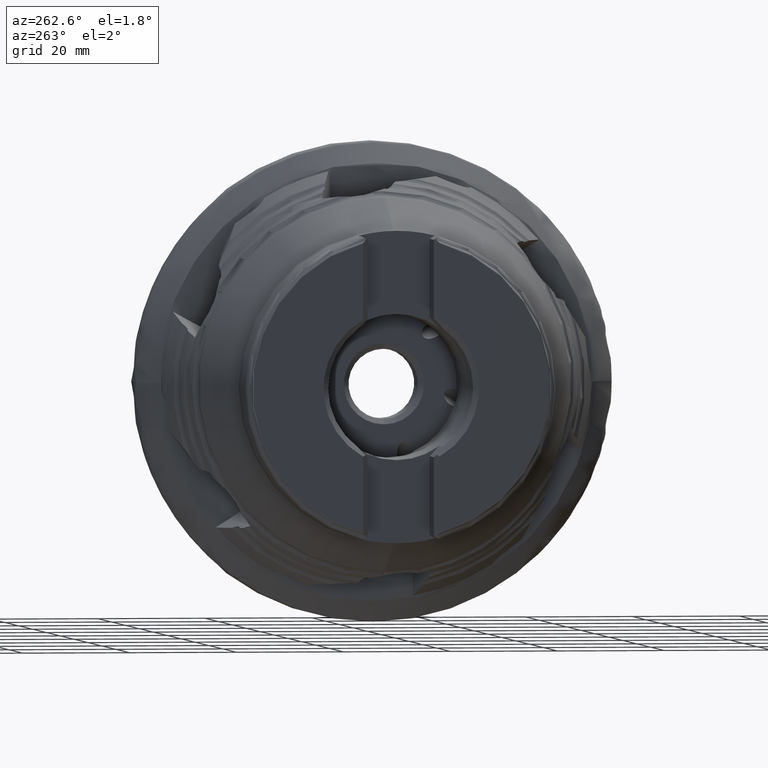
[diagram: clean part render]
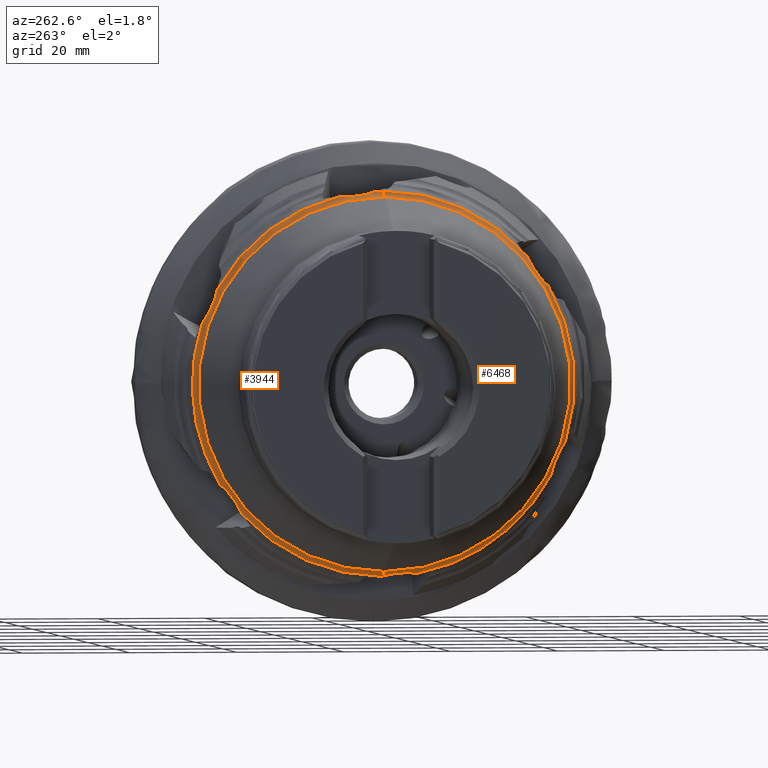
[diagram: same view with one multi-face feature highlighted, each face labeled with its STEP entity id]
A machine part, auxiliary view. The highlighted faces form ONE feature: a constant-radius fillet chain: 2 tangent blend faces with common blend radius 1.5 mm. The faces share edges in the B-rep.
Their STEP definitions:
[1] entity #3944 (Torus):
#110 = EDGE_CURVE ( 'NONE', #8432, #2857, #7412, .T. ) ;
#207 = ORIENTED_EDGE ( 'NONE', *, *, #3292, .T. ) ;
#227 = CARTESIAN_POINT ( 'NONE',  ( -23.26846922673073000, 33.07769343944865200, 12.62032171357736700 ) ) ;
#229 = CARTESIAN_POINT ( 'NONE',  ( -23.13291460388395400, 0.09912091284116551800, -35.66164226546533200 ) ) ;
#280 = ORIENTED_EDGE ( 'NONE', *, *, #873, .F. ) ;
#581 = DIRECTION ( 'NONE',  ( 0.0000000000000000000, 0.0000000000000000000, -1.000000000000000000 ) ) ;
#662 = CARTESIAN_POINT ( 'NONE',  ( -24.52349797747156000, 0.0000000000000000000, -36.22528040789519800 ) ) ;
#671 = CIRCLE ( 'NONE', #9374, 35.74048612992343300 ) ;
#740 = CARTESIAN_POINT ( 'NONE',  ( -23.38823427744470600, 27.83872261549176800, -21.62232990215361600 ) ) ;
#775 = CARTESIAN_POINT ( 'NONE',  ( -23.26846922673071600, 27.07436607613778500, -22.81194917151126900 ) ) ;
#805 = CARTESIAN_POINT ( 'NONE',  ( -23.26179094232400500, 29.60827765928307900, -19.42470319220430500 ) ) ;
#873 = EDGE_CURVE ( 'NONE', #1262, #6074, #6096, .T. ) ;
#960 = EDGE_CURVE ( 'NONE', #2857, #10159, #9450, .T. ) ;
#1061 = CARTESIAN_POINT ( 'NONE',  ( -23.38823427744470600, 32.40779638605266700, 13.86558187239222700 ) ) ;
#1262 = VERTEX_POINT ( 'NONE', #7459 ) ;
#1452 = CARTESIAN_POINT ( 'NONE',  ( -24.52349797747156000, 0.0000000000000000000, 0.0000000000000000000 ) ) ;
#1454 = ORIENTED_EDGE ( 'NONE', *, *, #4030, .F. ) ;
#1481 = CARTESIAN_POINT ( 'NONE',  ( -23.40237160754822900, 28.50734537346001900, -20.70540525347352900 ) ) ;
#1597 = ORIENTED_EDGE ( 'NONE', *, *, #7899, .F. ) ;
#1717 = CARTESIAN_POINT ( 'NONE',  ( -23.23695502368799000, 7.107204732017213400, 34.73226298735313100 ) ) ;
#1750 = CARTESIAN_POINT ( 'NONE',  ( -23.10400000000001300, 8.233862509804312800, 34.77910086492876500 ) ) ;
#1786 = CARTESIAN_POINT ( 'NONE',  ( -23.13595162644875500, 7.951616487152876700, 34.74978005706662300 ) ) ;
#1802 = CARTESIAN_POINT ( 'NONE',  ( -23.10400000000001000, 0.0000000000000000000, 0.0000000000000000000 ) ) ;
#1836 = CARTESIAN_POINT ( 'NONE',  ( -23.14192288257311200, 31.14701512158321600, 17.30285532417699200 ) ) ;
#2253 = DIRECTION ( 'NONE',  ( 0.0000000000000000000, 0.0000000000000000000, -1.000000000000000000 ) ) ;
#2405 = CARTESIAN_POINT ( 'NONE',  ( -23.13595162644875500, 26.53782228718883500, -23.80166815638874700 ) ) ;
#2482 = AXIS2_PLACEMENT_3D ( 'NONE', #1802, #3370, #3404 ) ;
#2571 = CARTESIAN_POINT ( 'NONE',  ( -23.38823427744469900, 5.414835307333183900, 34.83100896980042200 ) ) ;
#2857 = VERTEX_POINT ( 'NONE', #3025 ) ;
#2887 = DIRECTION ( 'NONE',  ( 1.000000000000000000, -0.0000000000000000000, -0.0000000000000000000 ) ) ;
#2933 = CARTESIAN_POINT ( 'NONE',  ( -23.14788680083583500, -3.415367212235292800E-015, -35.62720525315721400 ) ) ;
#2946 = VERTEX_POINT ( 'NONE', #10301 ) ;
#2954 = DIRECTION ( 'NONE',  ( 0.0000000000000000000, 0.0000000000000000000, -1.000000000000000000 ) ) ;
#2961 = AXIS2_PLACEMENT_3D ( 'NONE', #6237, #8648, #9448 ) ;
#3025 = CARTESIAN_POINT ( 'NONE',  ( -23.10400000000004900, 31.11547545473005600, 17.58435486531532300 ) ) ;
#3062 = DIRECTION ( 'NONE',  ( 1.000000000000000000, -0.0000000000000000000, -0.0000000000000000000 ) ) ;
#3118 = DIRECTION ( 'NONE',  ( 0.0000000000000000000, 0.0000000000000000000, -1.000000000000000000 ) ) ;
#3122 = CARTESIAN_POINT ( 'NONE',  ( -23.37804757797597700, 28.85448777893662300, -20.26012901961817300 ) ) ;
#3149 = DIRECTION ( 'NONE',  ( 1.000000000000000000, -0.0000000000000000000, -0.0000000000000000000 ) ) ;
#3229 = CARTESIAN_POINT ( 'NONE',  ( -23.18460891632897600, 30.01846003366986100, -19.03637835003804900 ) ) ;
#3292 = EDGE_CURVE ( 'NONE', #2946, #6565, #9000, .T. ) ;
#3353 = CARTESIAN_POINT ( 'NONE',  ( -23.26179094232401200, 2.634850369090146100, 35.31326611327448700 ) ) ;
#3370 = DIRECTION ( 'NONE',  ( 1.000000000000000000, -0.0000000000000000000, -0.0000000000000000000 ) ) ;
#3404 = DIRECTION ( 'NONE',  ( 0.0000000000000000000, 0.0000000000000000000, -1.000000000000000000 ) ) ;
#3426 = CIRCLE ( 'NONE', #4770, 35.74048612992343300 ) ;
#3441 = CARTESIAN_POINT ( 'NONE',  ( -23.13595162644876200, 33.68319957758659200, 11.67122465681031700 ) ) ;
#3470 = ORIENTED_EDGE ( 'NONE', *, *, #4449, .F. ) ;
#3944 = ADVANCED_FACE ( 'NONE', ( #8224 ), #9618, .F. ) ;
#3962 = CARTESIAN_POINT ( 'NONE',  ( -23.35050656518268800, 27.51899163972053900, -22.09263894443169500 ) ) ;
#4030 = EDGE_CURVE ( 'NONE', #6951, #4635, #671, .T. ) ;
#4187 = VERTEX_POINT ( 'NONE', #8857 ) ;
#4195 = CARTESIAN_POINT ( 'NONE',  ( -23.40237160754823300, 4.288720194257072300, 34.97126571984026800 ) ) ;
#4207 = EDGE_LOOP ( 'NONE', ( #5543, #207, #6656, #1454, #6801, #9696, #6307, #3470, #280, #7071, #1597 ) ) ;
#4210 = CARTESIAN_POINT ( 'NONE',  ( -23.17078203873097700, 33.52378406871660100, 11.90357830203017100 ) ) ;
#4449 = EDGE_CURVE ( 'NONE', #6074, #8432, #3426, .T. ) ;
#4492 = DIRECTION ( 'NONE',  ( 0.0000000000000000000, 0.0000000000000000000, -1.000000000000000000 ) ) ;
#4562 = CARTESIAN_POINT ( 'NONE',  ( -23.10400000000001000, 0.0000000000000000000, 0.0000000000000000000 ) ) ;
#4570 = CARTESIAN_POINT ( 'NONE',  ( -23.10400000000005200, 1.576311193567172300, 35.70570811262930300 ) ) ;
#4580 = CARTESIAN_POINT ( 'NONE',  ( -24.52349797747156000, 4.252620350102314500E-015, 34.72528040789519800 ) ) ;
#4601 = CARTESIAN_POINT ( 'NONE',  ( -23.10400000000005200, 30.46470514152916600, -18.68914362518876300 ) ) ;
#4616 = CIRCLE ( 'NONE', #8369, 35.74048612992343300 ) ;
#4635 = VERTEX_POINT ( 'NONE', #5831 ) ;
#4770 = AXIS2_PLACEMENT_3D ( 'NONE', #9405, #3149, #3118 ) ;
#4812 = CARTESIAN_POINT ( 'NONE',  ( -23.29633017139913100, 29.41467465534910300, -19.62881302190041000 ) ) ;
#4972 = CARTESIAN_POINT ( 'NONE',  ( -23.14788680083583500, -3.415367212235292800E-015, -35.62720525315721400 ) ) ;
#5021 = CIRCLE ( 'NONE', #2961, 1.499999999999994400 ) ;
#5036 = CARTESIAN_POINT ( 'NONE',  ( -23.29633017139915200, 31.42826394603787700, 16.21041674562821200 ) ) ;
#5356 = AXIS2_PLACEMENT_3D ( 'NONE', #662, #10147, #2253 ) ;
#5543 = ORIENTED_EDGE ( 'NONE', *, *, #5692, .T. ) ;
#5685 = CARTESIAN_POINT ( 'NONE',  ( -23.35050656518269800, 5.981185517100080100, 34.77937630559328100 ) ) ;
#5692 = EDGE_CURVE ( 'NONE', #8806, #2946, #10105, .T. ) ;
#5788 = CARTESIAN_POINT ( 'NONE',  ( -23.14192288257310500, 1.831749820551429800, 35.58328323733552200 ) ) ;
#5807 = CARTESIAN_POINT ( 'NONE',  ( -23.10400000000001000, 33.85763263752804200, 11.44740411558206900 ) ) ;
#5831 = CARTESIAN_POINT ( 'NONE',  ( -23.10400000000001000, 4.376947193898110400E-015, 35.74048612992343300 ) ) ;
#5840 = CARTESIAN_POINT ( 'NONE',  ( -23.23695502368799700, 33.22087420397446800, 12.37804380543112300 ) ) ;
#5875 = CARTESIAN_POINT ( 'NONE',  ( -23.18460891632898700, 31.20282986680832200, 17.02571736467650300 ) ) ;
#6074 = VERTEX_POINT ( 'NONE', #4601 ) ;
#6096 = B_SPLINE_CURVE_WITH_KNOTS ( 'NONE', 3,
 ( #8642, #2405, #7879, #8706, #775, #3962, #740, #1481, #3122, #4812, #805, #3229, #8671, #9511 ),
 .UNSPECIFIED., .F., .F.,
 ( 4, 2, 2, 2, 2, 2, 4 ),
 ( 0.0000000000000000000, 0.0008494093189409970600, 0.001698818637881994100, 0.003397637275763997400, 0.005096455913645999700, 0.005945865232587005900, 0.006795274551528011200 ),
 .UNSPECIFIED. ) ;
#6237 = CARTESIAN_POINT ( 'NONE',  ( -24.52349797747156000, 4.436317369974417200E-015, 36.22528040789519800 ) ) ;
#6307 = ORIENTED_EDGE ( 'NONE', *, *, #110, .F. ) ;
#6334 = CARTESIAN_POINT ( 'NONE',  ( -23.10400000000001300, 8.233862509804312800, 34.77910086492876500 ) ) ;
#6441 = B_SPLINE_CURVE_WITH_KNOTS ( 'NONE', 3,
 ( #4972, #229, #9693, #7395 ),
 .UNSPECIFIED., .F., .F.,
 ( 4, 4 ),
 ( 0.006479541818658981900, 0.006795274551528320900 ),
 .UNSPECIFIED. ) ;
#6565 = VERTEX_POINT ( 'NONE', #4580 ) ;
#6579 = CARTESIAN_POINT ( 'NONE',  ( -23.26179094232400500, 31.34360606538053800, 16.47870015725375100 ) ) ;
#6596 = EDGE_CURVE ( 'NONE', #4635, #6565, #5021, .T. ) ;
#6656 = ORIENTED_EDGE ( 'NONE', *, *, #6596, .F. ) ;
#6666 = CARTESIAN_POINT ( 'NONE',  ( -23.35050656518270200, 32.66412928993029400, 13.35792851181456900 ) ) ;
#6801 = ORIENTED_EDGE ( 'NONE', *, *, #9409, .F. ) ;
#6951 = VERTEX_POINT ( 'NONE', #4570 ) ;
#6999 = DIRECTION ( 'NONE',  ( 0.0000000000000000000, 0.0000000000000000000, -1.000000000000000000 ) ) ;
#7071 = ORIENTED_EDGE ( 'NONE', *, *, #7408, .F. ) ;
#7234 = CARTESIAN_POINT ( 'NONE',  ( -23.18460891632899400, 2.096353448201546700, 35.48375608217153900 ) ) ;
#7275 = CARTESIAN_POINT ( 'NONE',  ( -23.29633017139914100, 2.907229447379019200, 35.24289151969597400 ) ) ;
#7309 = CARTESIAN_POINT ( 'NONE',  ( -23.26846922673071600, 6.825867167883159500, 34.73922654341556900 ) ) ;
#7344 = CARTESIAN_POINT ( 'NONE',  ( -23.17078203873097300, 7.670092071521425600, 34.73771671098843000 ) ) ;
#7395 = CARTESIAN_POINT ( 'NONE',  ( -23.10400000000000600, 0.2945414635460567600, -35.73927243424944300 ) ) ;
#7408 = EDGE_CURVE ( 'NONE', #4187, #1262, #4616, .T. ) ;
#7412 = B_SPLINE_CURVE_WITH_KNOTS ( 'NONE', 3,
 ( #5807, #3441, #4210, #5840, #227, #6666, #1061, #9760, #9822, #5036, #6579, #5875, #1836, #8135 ),
 .UNSPECIFIED., .F., .F.,
 ( 4, 2, 2, 2, 2, 2, 4 ),
 ( 0.0000000000000000000, 0.0008494093189410055200, 0.001698818637882011000, 0.003397637275764017300, 0.005096455913646024000, 0.005945865232587018900, 0.006795274551528013800 ),
 .UNSPECIFIED. ) ;
#7459 = CARTESIAN_POINT ( 'NONE',  ( -23.10400000000001300, 26.42663125651662500, -24.06274109978637200 ) ) ;
#7879 = CARTESIAN_POINT ( 'NONE',  ( -23.17078203873099100, 26.66375719200716400, -23.54959292820551700 ) ) ;
#7899 = EDGE_CURVE ( 'NONE', #8806, #4187, #6441, .T. ) ;
#8135 = CARTESIAN_POINT ( 'NONE',  ( -23.10400000000004900, 31.11547545473005600, 17.58435486531532300 ) ) ;
#8224 = FACE_OUTER_BOUND ( 'NONE', #4207, .T. ) ;
#8301 = AXIS2_PLACEMENT_3D ( 'NONE', #9177, #2887, #4492 ) ;
#8369 = AXIS2_PLACEMENT_3D ( 'NONE', #4562, #9294, #6999 ) ;
#8432 = VERTEX_POINT ( 'NONE', #8805 ) ;
#8642 = CARTESIAN_POINT ( 'NONE',  ( -23.10400000000001300, 26.42663125651662500, -24.06274109978637200 ) ) ;
#8648 = DIRECTION ( 'NONE',  ( 0.0000000000000000000, 1.000000000000000000, -1.224646799147353200E-016 ) ) ;
#8671 = CARTESIAN_POINT ( 'NONE',  ( -23.14192288257310500, 30.23379082920864700, -18.85320252501394100 ) ) ;
#8706 = CARTESIAN_POINT ( 'NONE',  ( -23.23695502368801200, 26.93188045514494200, -23.05463655049130600 ) ) ;
#8805 = CARTESIAN_POINT ( 'NONE',  ( -23.10400000000001000, 33.85763263752804200, 11.44740411558206900 ) ) ;
#8806 = VERTEX_POINT ( 'NONE', #2933 ) ;
#8857 = CARTESIAN_POINT ( 'NONE',  ( -23.10400000000000600, 0.2945414635460567600, -35.73927243424944300 ) ) ;
#8858 = AXIS2_PLACEMENT_3D ( 'NONE', #1452, #9279, #2954 ) ;
#8904 = CARTESIAN_POINT ( 'NONE',  ( -23.37804757797599100, 3.730974847235854600, 35.05900910701375800 ) ) ;
#9000 = CIRCLE ( 'NONE', #8858, 34.72528040789519800 ) ;
#9177 = CARTESIAN_POINT ( 'NONE',  ( -24.52349797747156000, 0.0000000000000000000, 0.0000000000000000000 ) ) ;
#9279 = DIRECTION ( 'NONE',  ( 1.000000000000000000, -0.0000000000000000000, -0.0000000000000000000 ) ) ;
#9294 = DIRECTION ( 'NONE',  ( 1.000000000000000000, -0.0000000000000000000, -0.0000000000000000000 ) ) ;
#9374 = AXIS2_PLACEMENT_3D ( 'NONE', #10168, #3062, #581 ) ;
#9405 = CARTESIAN_POINT ( 'NONE',  ( -23.10400000000001000, 0.0000000000000000000, 0.0000000000000000000 ) ) ;
#9409 = EDGE_CURVE ( 'NONE', #10159, #6951, #10160, .T. ) ;
#9448 = DIRECTION ( 'NONE',  ( 0.0000000000000000000, 1.224646799147354900E-016, 1.000000000000000000 ) ) ;
#9450 = CIRCLE ( 'NONE', #2482, 35.74048612992343300 ) ;
#9511 = CARTESIAN_POINT ( 'NONE',  ( -23.10400000000005200, 30.46470514152916600, -18.68914362518876300 ) ) ;
#9618 = TOROIDAL_SURFACE ( 'NONE', #8301, 36.22528040789519800, 1.499999999999994400 ) ;
#9669 = CARTESIAN_POINT ( 'NONE',  ( -23.10400000000005200, 1.576311193567172300, 35.70570811262930300 ) ) ;
#9693 = CARTESIAN_POINT ( 'NONE',  ( -23.11809626087926300, 0.1973412380995531200, -35.69879765500817800 ) ) ;
#9696 = ORIENTED_EDGE ( 'NONE', *, *, #960, .F. ) ;
#9760 = CARTESIAN_POINT ( 'NONE',  ( -23.40237160754823600, 31.92999076373385800, 14.89490640387425200 ) ) ;
#9822 = CARTESIAN_POINT ( 'NONE',  ( -23.37804757797599500, 31.70884137225368000, 15.41439819472801700 ) ) ;
#10105 = CIRCLE ( 'NONE', #5356, 1.499999999999994400 ) ;
#10147 = DIRECTION ( 'NONE',  ( -0.0000000000000000000, -1.000000000000000000, -0.0000000000000000000 ) ) ;
#10159 = VERTEX_POINT ( 'NONE', #6334 ) ;
#10160 = B_SPLINE_CURVE_WITH_KNOTS ( 'NONE', 3,
 ( #1750, #1786, #7344, #1717, #7309, #5685, #2571, #4195, #8904, #7275, #3353, #7234, #5788, #9669 ),
 .UNSPECIFIED., .F., .F.,
 ( 4, 2, 2, 2, 2, 2, 4 ),
 ( 0.0000000000000000000, 0.0008494093189409995600, 0.001698818637881999100, 0.003397637275763998200, 0.005096455913645997100, 0.005945865232586999800, 0.006795274551528002500 ),
 .UNSPECIFIED. ) ;
#10168 = CARTESIAN_POINT ( 'NONE',  ( -23.10400000000001000, 0.0000000000000000000, 0.0000000000000000000 ) ) ;
#10301 = CARTESIAN_POINT ( 'NONE',  ( -24.52349797747156000, 0.0000000000000000000, -34.72528040789519800 ) ) ;
[2] entity #6468 (Torus):
#12 = CARTESIAN_POINT ( 'NONE',  ( -23.14192288257310900, -31.44424774395917400, -16.75662964829302100 ) ) ;
#85 = AXIS2_PLACEMENT_3D ( 'NONE', #2673, #5921, #4218 ) ;
#122 = CIRCLE ( 'NONE', #85, 35.74048612992343300 ) ;
#288 = CARTESIAN_POINT ( 'NONE',  ( -23.40237160754820800, -32.18507963188972800, -14.33538266113668400 ) ) ;
#421 = B_SPLINE_CURVE_WITH_KNOTS ( 'NONE', 3,
 ( #2465, #4019, #1608, #2356, #9817, #7936, #7198, #288, #916, #4090, #5690, #5868, #12, #1086 ),
 .UNSPECIFIED., .F., .F.,
 ( 4, 2, 2, 2, 2, 2, 4 ),
 ( 0.0000000000000000000, 0.0008494093189410023800, 0.001698818637882004800, 0.003397637275764019500, 0.005096455913646034400, 0.005945865232587041500, 0.006795274551528049400 ),
 .UNSPECIFIED. ) ;
#469 = CARTESIAN_POINT ( 'NONE',  ( -23.37804757797598800, -29.20368110681039300, 19.75346305557852500 ) ) ;
#655 = ORIENTED_EDGE ( 'NONE', *, *, #9465, .T. ) ;
#662 = CARTESIAN_POINT ( 'NONE',  ( -24.52349797747156000, 0.0000000000000000000, -36.22528040789519800 ) ) ;
#916 = CARTESIAN_POINT ( 'NONE',  ( -23.37804757797597700, -31.97303030440784600, -14.85865491993795800 ) ) ;
#1086 = CARTESIAN_POINT ( 'NONE',  ( -23.10400000000004200, -31.41762572515388600, -17.03863675877258300 ) ) ;
#1312 = EDGE_CURVE ( 'NONE', #5933, #8643, #122, .T. ) ;
#1317 = DIRECTION ( 'NONE',  ( 0.0000000000000000000, 0.0000000000000000000, -1.000000000000000000 ) ) ;
#1424 = CARTESIAN_POINT ( 'NONE',  ( -23.29349390063410400, -1.039218246334662400, -35.35013023318386900 ) ) ;
#1526 = FACE_OUTER_BOUND ( 'NONE', #1551, .T. ) ;
#1551 = EDGE_LOOP ( 'NONE', ( #9227, #655, #9749, #8725, #2136, #2059, #4612, #8953, #9166 ) ) ;
#1608 = CARTESIAN_POINT ( 'NONE',  ( -23.17078203873099100, -33.72642432061183400, -11.31669462451576200 ) ) ;
#1614 = EDGE_CURVE ( 'NONE', #9116, #2150, #3736, .T. ) ;
#1788 = CIRCLE ( 'NONE', #1894, 35.74048612992343300 ) ;
#1894 = AXIS2_PLACEMENT_3D ( 'NONE', #4194, #2570, #9002 ) ;
#2058 = CARTESIAN_POINT ( 'NONE',  ( -23.13595162644875500, -26.94917683486645600, 23.33489418652597200 ) ) ;
#2059 = ORIENTED_EDGE ( 'NONE', *, *, #3712, .F. ) ;
#2088 = CARTESIAN_POINT ( 'NONE',  ( -23.40237160754824700, -28.86436271461365900, 20.20472994205871900 ) ) ;
#2136 = ORIENTED_EDGE ( 'NONE', *, *, #1614, .F. ) ;
#2150 = VERTEX_POINT ( 'NONE', #5916 ) ;
#2236 = CARTESIAN_POINT ( 'NONE',  ( -23.38888915015690600, -2.099435473961732700, -35.18298484274135500 ) ) ;
#2253 = DIRECTION ( 'NONE',  ( 0.0000000000000000000, 0.0000000000000000000, -1.000000000000000000 ) ) ;
#2336 = CARTESIAN_POINT ( 'NONE',  ( -23.14788680083583500, -3.415367212235292800E-015, -35.62720525315721400 ) ) ;
#2356 = CARTESIAN_POINT ( 'NONE',  ( -23.23695502368800400, -33.43184115531507000, -11.79637437059575500 ) ) ;
#2465 = CARTESIAN_POINT ( 'NONE',  ( -23.10400000000001300, -34.05226070536112100, -10.85476345469438200 ) ) ;
#2570 = DIRECTION ( 'NONE',  ( 1.000000000000000000, -0.0000000000000000000, -0.0000000000000000000 ) ) ;
#2673 = CARTESIAN_POINT ( 'NONE',  ( -23.10400000000001000, 0.0000000000000000000, 0.0000000000000000000 ) ) ;
#2819 = CARTESIAN_POINT ( 'NONE',  ( -23.38823427744471700, -28.21184433277112200, 21.13318401479887500 ) ) ;
#2884 = CARTESIAN_POINT ( 'NONE',  ( -23.16757393422764700, -5.867615998716792600, -35.09410697327800200 ) ) ;
#2933 = CARTESIAN_POINT ( 'NONE',  ( -23.14788680083583500, -3.415367212235292800E-015, -35.62720525315721400 ) ) ;
#2946 = VERTEX_POINT ( 'NONE', #10301 ) ;
#2961 = AXIS2_PLACEMENT_3D ( 'NONE', #6237, #8648, #9448 ) ;
#3126 = CARTESIAN_POINT ( 'NONE',  ( -23.22550135034126100, -0.5151430941068400000, -35.46806891743323600 ) ) ;
#3432 = CARTESIAN_POINT ( 'NONE',  ( -23.10400000000001300, -34.05226070536112100, -10.85476345469438200 ) ) ;
#3712 = EDGE_CURVE ( 'NONE', #8643, #9116, #421, .T. ) ;
#3736 = CIRCLE ( 'NONE', #3829, 35.74048612992343300 ) ;
#3829 = AXIS2_PLACEMENT_3D ( 'NONE', #8532, #7040, #4668 ) ;
#3847 = EDGE_CURVE ( 'NONE', #6684, #5933, #8160, .T. ) ;
#3934 = CARTESIAN_POINT ( 'NONE',  ( -23.32256347583754400, -1.303180127275065400, -35.30278054341513200 ) ) ;
#4019 = CARTESIAN_POINT ( 'NONE',  ( -23.13595162644875500, -33.88176041947409800, -11.08159418362830100 ) ) ;
#4090 = CARTESIAN_POINT ( 'NONE',  ( -23.29633017139913100, -31.70638805077497600, -15.65944898463669200 ) ) ;
#4194 = CARTESIAN_POINT ( 'NONE',  ( -23.10400000000001000, 0.0000000000000000000, 0.0000000000000000000 ) ) ;
#4218 = DIRECTION ( 'NONE',  ( 0.0000000000000000000, 0.0000000000000000000, -1.000000000000000000 ) ) ;
#4423 = CARTESIAN_POINT ( 'NONE',  ( -23.14192288257311600, -30.55821982953581900, 18.32267868526045300 ) ) ;
#4454 = DIRECTION ( 'NONE',  ( 1.000000000000000000, -0.0000000000000000000, -0.0000000000000000000 ) ) ;
#4552 = CARTESIAN_POINT ( 'NONE',  ( -23.23695502368800100, -27.33013748664729900, 22.58109909385332900 ) ) ;
#4580 = CARTESIAN_POINT ( 'NONE',  ( -24.52349797747156000, 4.252620350102314500E-015, 34.72528040789519800 ) ) ;
#4612 = ORIENTED_EDGE ( 'NONE', *, *, #1312, .F. ) ;
#4635 = VERTEX_POINT ( 'NONE', #5831 ) ;
#4668 = DIRECTION ( 'NONE',  ( 0.0000000000000000000, 0.0000000000000000000, -1.000000000000000000 ) ) ;
#4917 = CARTESIAN_POINT ( 'NONE',  ( -24.52349797747156000, 0.0000000000000000000, 0.0000000000000000000 ) ) ;
#5021 = CIRCLE ( 'NONE', #2961, 1.499999999999994400 ) ;
#5218 = CARTESIAN_POINT ( 'NONE',  ( -23.17078203873099100, -27.07069323985378500, 23.08065948347741900 ) ) ;
#5297 = CARTESIAN_POINT ( 'NONE',  ( -23.26179094232402600, -29.94277599021875600, 18.90500902020451300 ) ) ;
#5328 = CARTESIAN_POINT ( 'NONE',  ( -23.29633017139914800, -29.75276468066573800, 19.11246660129707600 ) ) ;
#5356 = AXIS2_PLACEMENT_3D ( 'NONE', #662, #10147, #2253 ) ;
#5396 = CARTESIAN_POINT ( 'NONE',  ( -23.26130500061565700, -5.063774790195462400, -35.05053484683649100 ) ) ;
#5497 = CARTESIAN_POINT ( 'NONE',  ( -23.18629467170369600, -0.2542728520808654200, -35.53886468923486300 ) ) ;
#5690 = CARTESIAN_POINT ( 'NONE',  ( -23.26179094232401600, -31.62642525506301200, -15.92916901914055700 ) ) ;
#5692 = EDGE_CURVE ( 'NONE', #8806, #2946, #10105, .T. ) ;
#5831 = CARTESIAN_POINT ( 'NONE',  ( -23.10400000000001000, 4.376947193898110400E-015, 35.74048612992343300 ) ) ;
#5868 = CARTESIAN_POINT ( 'NONE',  ( -23.18460891632900500, -31.49521726401984600, -16.47855979662726300 ) ) ;
#5916 = CARTESIAN_POINT ( 'NONE',  ( -23.10400000000001700, -6.402380786362909900, -35.16236438394979300 ) ) ;
#5921 = DIRECTION ( 'NONE',  ( 1.000000000000000000, -0.0000000000000000000, -0.0000000000000000000 ) ) ;
#5933 = VERTEX_POINT ( 'NONE', #9842 ) ;
#6000 = CARTESIAN_POINT ( 'NONE',  ( -23.10400000000001300, -26.84255909024474500, 23.59786791830924800 ) ) ;
#6071 = CARTESIAN_POINT ( 'NONE',  ( -23.10400000000001700, -6.402380786362909900, -35.16236438394979300 ) ) ;
#6138 = CARTESIAN_POINT ( 'NONE',  ( -24.52349797747156000, 0.0000000000000000000, 0.0000000000000000000 ) ) ;
#6237 = CARTESIAN_POINT ( 'NONE',  ( -24.52349797747156000, 4.436317369974417200E-015, 36.22528040789519800 ) ) ;
#6293 = EDGE_CURVE ( 'NONE', #4635, #6684, #1788, .T. ) ;
#6410 = CARTESIAN_POINT ( 'NONE',  ( -23.10400000000001300, -26.84255909024474500, 23.59786791830924800 ) ) ;
#6468 = ADVANCED_FACE ( 'NONE', ( #1526 ), #9746, .F. ) ;
#6565 = VERTEX_POINT ( 'NONE', #4580 ) ;
#6570 = EDGE_CURVE ( 'NONE', #2150, #8806, #6804, .T. ) ;
#6596 = EDGE_CURVE ( 'NONE', #4635, #6565, #5021, .T. ) ;
#6684 = VERTEX_POINT ( 'NONE', #6410 ) ;
#6804 = B_SPLINE_CURVE_WITH_KNOTS ( 'NONE', 3,
 ( #6071, #7642, #2884, #10132, #5396, #8611, #7848, #10199, #2236, #3934, #1424, #3126, #5497, #2336 ),
 .UNSPECIFIED., .F., .F.,
 ( 4, 2, 2, 2, 2, 2, 4 ),
 ( 0.0000000000000000000, 0.0008099427273323729500, 0.001619885454664745900, 0.003239770909329489200, 0.004859656363994233600, 0.005669599091326608600, 0.006479541818658981900 ),
 .UNSPECIFIED. ) ;
#6850 = CARTESIAN_POINT ( 'NONE',  ( -23.10400000000004900, -30.78623574988869600, 18.15461476196955100 ) ) ;
#6916 = CARTESIAN_POINT ( 'NONE',  ( -23.26846922673073000, -27.46836592761478000, 22.33596196036756300 ) ) ;
#7040 = DIRECTION ( 'NONE',  ( 1.000000000000000000, -0.0000000000000000000, -0.0000000000000000000 ) ) ;
#7198 = CARTESIAN_POINT ( 'NONE',  ( -23.38823427744468500, -32.64484829201868600, -13.29787604284772600 ) ) ;
#7458 = AXIS2_PLACEMENT_3D ( 'NONE', #4917, #9840, #9808 ) ;
#7586 = CIRCLE ( 'NONE', #7458, 34.72528040789519800 ) ;
#7608 = CARTESIAN_POINT ( 'NONE',  ( -23.18460891632900800, -30.34611868886798200, 18.50958465228139700 ) ) ;
#7642 = CARTESIAN_POINT ( 'NONE',  ( -23.13446703973166100, -6.135080990813222000, -35.12035896820817300 ) ) ;
#7644 = CARTESIAN_POINT ( 'NONE',  ( -23.35050656518272300, -27.90037007813314300, 21.60900150167157800 ) ) ;
#7848 = CARTESIAN_POINT ( 'NONE',  ( -23.38060602764785400, -3.716910183612494900, -35.06130709094563300 ) ) ;
#7936 = CARTESIAN_POINT ( 'NONE',  ( -23.35050656518270200, -32.89228238237544100, -12.78582637431403100 ) ) ;
#8160 = B_SPLINE_CURVE_WITH_KNOTS ( 'NONE', 3,
 ( #6000, #2058, #5218, #4552, #6916, #7644, #2819, #2088, #469, #5328, #5297, #7608, #4423, #6850 ),
 .UNSPECIFIED., .F., .F.,
 ( 4, 2, 2, 2, 2, 2, 4 ),
 ( 0.0000000000000000000, 0.0008494093189410076900, 0.001698818637882015400, 0.003397637275764029500, 0.005096455913646044000, 0.005945865232587047500, 0.006795274551528051100 ),
 .UNSPECIFIED. ) ;
#8479 = AXIS2_PLACEMENT_3D ( 'NONE', #6138, #4454, #1317 ) ;
#8532 = CARTESIAN_POINT ( 'NONE',  ( -23.10400000000001000, 0.0000000000000000000, 0.0000000000000000000 ) ) ;
#8611 = CARTESIAN_POINT ( 'NONE',  ( -23.34165178821719500, -4.257732570629900500, -35.04305024756121900 ) ) ;
#8643 = VERTEX_POINT ( 'NONE', #3432 ) ;
#8648 = DIRECTION ( 'NONE',  ( 0.0000000000000000000, 1.000000000000000000, -1.224646799147353200E-016 ) ) ;
#8725 = ORIENTED_EDGE ( 'NONE', *, *, #6570, .F. ) ;
#8806 = VERTEX_POINT ( 'NONE', #2933 ) ;
#8953 = ORIENTED_EDGE ( 'NONE', *, *, #3847, .F. ) ;
#9002 = DIRECTION ( 'NONE',  ( 0.0000000000000000000, 0.0000000000000000000, -1.000000000000000000 ) ) ;
#9116 = VERTEX_POINT ( 'NONE', #9845 ) ;
#9166 = ORIENTED_EDGE ( 'NONE', *, *, #6293, .F. ) ;
#9227 = ORIENTED_EDGE ( 'NONE', *, *, #6596, .T. ) ;
#9448 = DIRECTION ( 'NONE',  ( 0.0000000000000000000, 1.224646799147354900E-016, 1.000000000000000000 ) ) ;
#9465 = EDGE_CURVE ( 'NONE', #6565, #2946, #7586, .T. ) ;
#9746 = TOROIDAL_SURFACE ( 'NONE', #8479, 36.22528040789519800, 1.499999999999994400 ) ;
#9749 = ORIENTED_EDGE ( 'NONE', *, *, #5692, .F. ) ;
#9808 = DIRECTION ( 'NONE',  ( 0.0000000000000000000, 0.0000000000000000000, -1.000000000000000000 ) ) ;
#9817 = CARTESIAN_POINT ( 'NONE',  ( -23.26846922673072300, -33.29291053043692700, -12.04111422753959100 ) ) ;
#9840 = DIRECTION ( 'NONE',  ( 1.000000000000000000, -0.0000000000000000000, -0.0000000000000000000 ) ) ;
#9842 = CARTESIAN_POINT ( 'NONE',  ( -23.10400000000004900, -30.78623574988869600, 18.15461476196955100 ) ) ;
#9845 = CARTESIAN_POINT ( 'NONE',  ( -23.10400000000004200, -31.41762572515388600, -17.03863675877258300 ) ) ;
#10105 = CIRCLE ( 'NONE', #5356, 1.499999999999994400 ) ;
#10132 = CARTESIAN_POINT ( 'NONE',  ( -23.23092073998963500, -5.331960045419974000, -35.05904544541411400 ) ) ;
#10147 = DIRECTION ( 'NONE',  ( -0.0000000000000000000, -1.000000000000000000, -0.0000000000000000000 ) ) ;
#10199 = CARTESIAN_POINT ( 'NONE',  ( -23.40452624404544200, -2.635971656751803200, -35.13157315039987300 ) ) ;
#10301 = CARTESIAN_POINT ( 'NONE',  ( -24.52349797747156000, 0.0000000000000000000, -34.72528040789519800 ) ) ;